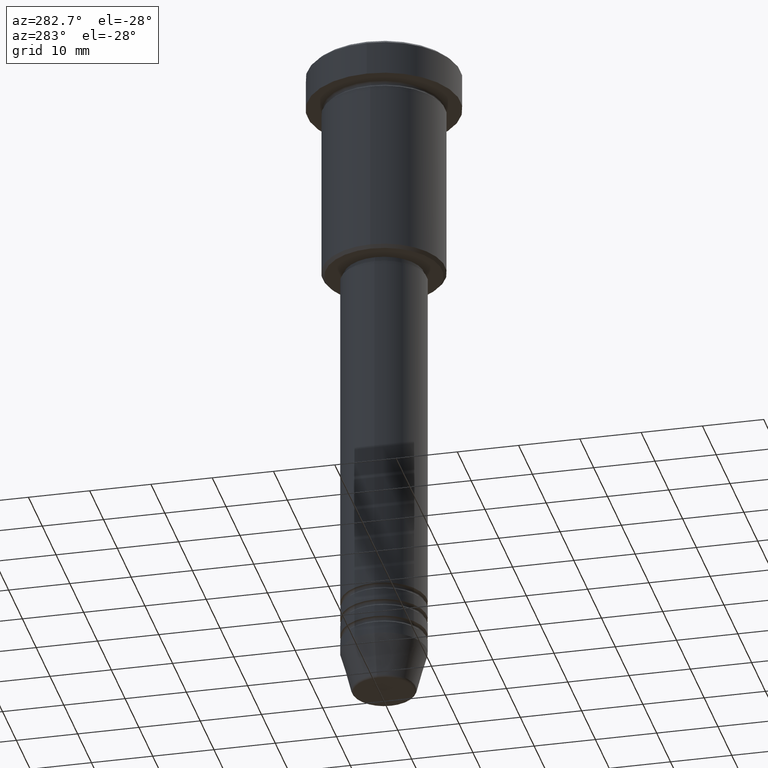
[diagram: clean part render]
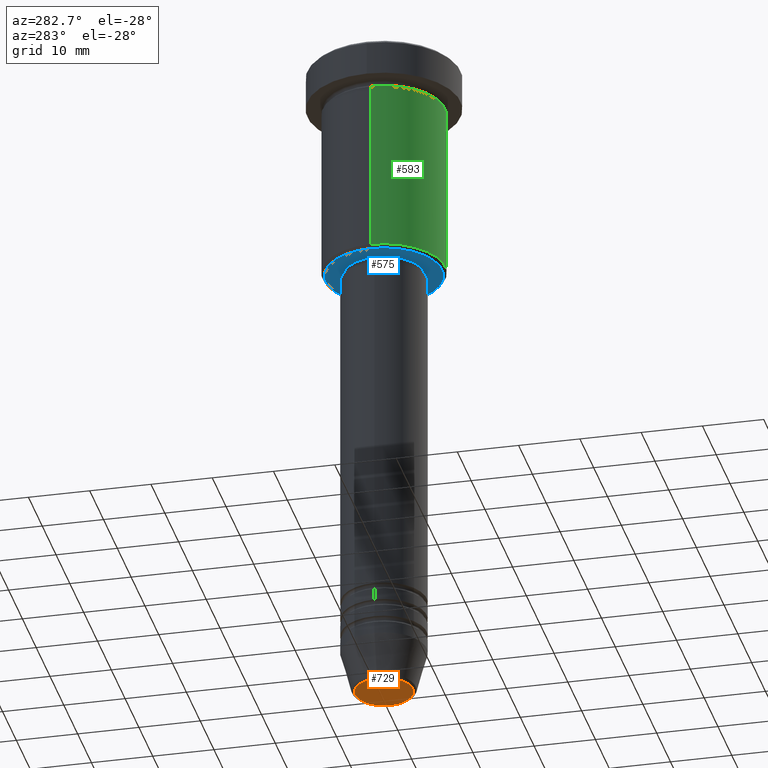
[diagram: same view with three faces highlighted in distinct colors, each labeled with its STEP entity id]
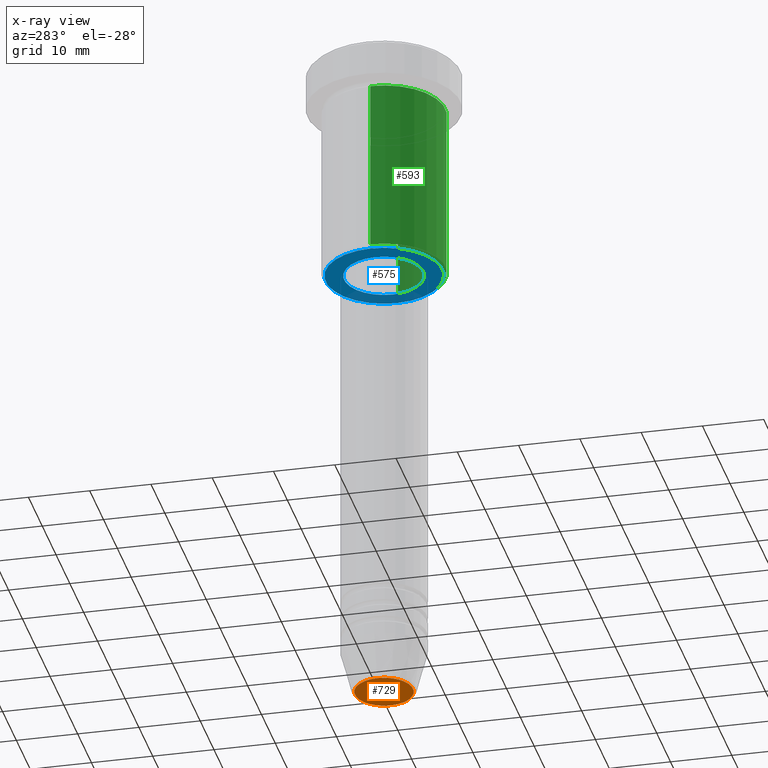
[diagram: x-ray of the same camera — body ghosted, the three highlighted faces saturated]
A machine part, auxiliary view with three faces highlighted in distinct colors.
The next image is the same camera in x-ray (body ghosted, the three faces saturated) — at least one of them is partly hidden behind the body in this view.
Their STEP definitions:

[orange] entity #729 — the highlighted planar face has unit normal (0, -0, 1).
#18 = CIRCLE ( 'NONE', #647, 4.740692158992659166 ) ;
#29 = DIRECTION ( 'NONE',  ( 1.000000000000000000, 0.000000000000000000, 0.000000000000000000 ) ) ;
#71 = ORIENTED_EDGE ( 'NONE', *, *, #395, .T. ) ;
#72 = DIRECTION ( 'NONE',  ( 1.000000000000000000, 0.000000000000000000, 0.000000000000000000 ) ) ;
#203 = EDGE_CURVE ( 'NONE', #429, #1035, #18, .T. ) ;
#214 = EDGE_LOOP ( 'NONE', ( #71, #1021 ) ) ;
#367 = DIRECTION ( 'NONE',  ( 0.000000000000000000, 0.000000000000000000, -1.000000000000000000 ) ) ;
#395 = EDGE_CURVE ( 'NONE', #1035, #429, #747, .T. ) ;
#429 = VERTEX_POINT ( 'NONE', #736 ) ;
#435 = AXIS2_PLACEMENT_3D ( 'NONE', #650, #367, #843 ) ;
#453 = AXIS2_PLACEMENT_3D ( 'NONE', #786, #790, #72 ) ;
#576 = DIRECTION ( 'NONE',  ( 0.000000000000000000, 0.000000000000000000, -1.000000000000000000 ) ) ;
#602 = FACE_OUTER_BOUND ( 'NONE', #214, .T. ) ;
#647 = AXIS2_PLACEMENT_3D ( 'NONE', #691, #576, #29 ) ;
#650 = CARTESIAN_POINT ( 'NONE',  ( 0.000000000000000000, 0.000000000000000000, -111.0000000000000000 ) ) ;
#691 = CARTESIAN_POINT ( 'NONE',  ( 0.000000000000000000, 0.000000000000000000, -111.0000000000000000 ) ) ;
#729 = ADVANCED_FACE ( 'NONE', ( #602 ), #877, .F. ) ;
#736 = CARTESIAN_POINT ( 'NONE',  ( -4.740692158992659166, 6.101402971097984690E-16, -111.0000000000000000 ) ) ;
#747 = CIRCLE ( 'NONE', #435, 4.740692158992659166 ) ;
#754 = CARTESIAN_POINT ( 'NONE',  ( 4.740692158992659166, 0.000000000000000000, -111.0000000000000000 ) ) ;
#786 = CARTESIAN_POINT ( 'NONE',  ( 0.000000000000000000, 0.000000000000000000, -111.0000000000000000 ) ) ;
#790 = DIRECTION ( 'NONE',  ( 0.000000000000000000, -0.000000000000000000, 1.000000000000000000 ) ) ;
#843 = DIRECTION ( 'NONE',  ( 1.000000000000000000, 0.000000000000000000, 0.000000000000000000 ) ) ;
#877 = PLANE ( 'NONE',  #453 ) ;
#1021 = ORIENTED_EDGE ( 'NONE', *, *, #203, .T. ) ;
#1035 = VERTEX_POINT ( 'NONE', #754 ) ;

[blue] entity #575 — the highlighted planar face has unit normal (0, 0, -1).
#12 = CIRCLE ( 'NONE', #76, 6.500000000000000000 ) ;
#23 = CARTESIAN_POINT ( 'NONE',  ( 0.000000000000000000, 0.000000000000000000, -36.00000000000000711 ) ) ;
#47 = DIRECTION ( 'NONE',  ( -1.000000000000000000, 0.000000000000000000, 0.000000000000000000 ) ) ;
#76 = AXIS2_PLACEMENT_3D ( 'NONE', #669, #934, #866 ) ;
#85 = ORIENTED_EDGE ( 'NONE', *, *, #986, .T. ) ;
#130 = AXIS2_PLACEMENT_3D ( 'NONE', #853, #1112, #670 ) ;
#131 = FACE_OUTER_BOUND ( 'NONE', #806, .T. ) ;
#142 = EDGE_LOOP ( 'NONE', ( #85, #718 ) ) ;
#239 = VERTEX_POINT ( 'NONE', #437 ) ;
#241 = CIRCLE ( 'NONE', #468, 9.500000000000008882 ) ;
#258 = CIRCLE ( 'NONE', #928, 6.500000000000000000 ) ;
#269 = CARTESIAN_POINT ( 'NONE',  ( 0.000000000000000000, 0.000000000000000000, -36.00000000000000711 ) ) ;
#295 = VERTEX_POINT ( 'NONE', #1158 ) ;
#390 = VERTEX_POINT ( 'NONE', #1181 ) ;
#399 = DIRECTION ( 'NONE',  ( -1.000000000000000000, 0.000000000000000000, 0.000000000000000000 ) ) ;
#411 = DIRECTION ( 'NONE',  ( 0.000000000000000000, 0.000000000000000000, -1.000000000000000000 ) ) ;
#437 = CARTESIAN_POINT ( 'NONE',  ( 9.500000000000008882, 0.000000000000000000, -36.00000000000000711 ) ) ;
#468 = AXIS2_PLACEMENT_3D ( 'NONE', #506, #867, #47 ) ;
#481 = FACE_BOUND ( 'NONE', #142, .T. ) ;
#506 = CARTESIAN_POINT ( 'NONE',  ( 0.000000000000000000, 0.000000000000000000, -36.00000000000000711 ) ) ;
#575 = ADVANCED_FACE ( 'NONE', ( #131, #481 ), #755, .T. ) ;
#667 = EDGE_CURVE ( 'NONE', #239, #295, #241, .T. ) ;
#669 = CARTESIAN_POINT ( 'NONE',  ( 0.000000000000000000, 0.000000000000000000, -36.00000000000000711 ) ) ;
#670 = DIRECTION ( 'NONE',  ( -1.000000000000000000, 0.000000000000000000, -0.000000000000000000 ) ) ;
#689 = VERTEX_POINT ( 'NONE', #1060 ) ;
#718 = ORIENTED_EDGE ( 'NONE', *, *, #864, .T. ) ;
#755 = PLANE ( 'NONE',  #130 ) ;
#806 = EDGE_LOOP ( 'NONE', ( #1041, #1028 ) ) ;
#830 = DIRECTION ( 'NONE',  ( -0.000000000000000000, -0.000000000000000000, 1.000000000000000000 ) ) ;
#853 = CARTESIAN_POINT ( 'NONE',  ( 0.000000000000000000, 10.00000000000000000, -36.00000000000000711 ) ) ;
#864 = EDGE_CURVE ( 'NONE', #390, #689, #258, .T. ) ;
#866 = DIRECTION ( 'NONE',  ( 1.000000000000000000, 0.000000000000000000, 0.000000000000000000 ) ) ;
#867 = DIRECTION ( 'NONE',  ( 0.000000000000000000, 0.000000000000000000, -1.000000000000000000 ) ) ;
#928 = AXIS2_PLACEMENT_3D ( 'NONE', #269, #830, #1179 ) ;
#934 = DIRECTION ( 'NONE',  ( -0.000000000000000000, -0.000000000000000000, 1.000000000000000000 ) ) ;
#986 = EDGE_CURVE ( 'NONE', #689, #390, #12, .T. ) ;
#1015 = EDGE_CURVE ( 'NONE', #295, #239, #1140, .T. ) ;
#1028 = ORIENTED_EDGE ( 'NONE', *, *, #1015, .T. ) ;
#1041 = ORIENTED_EDGE ( 'NONE', *, *, #667, .T. ) ;
#1060 = CARTESIAN_POINT ( 'NONE',  ( 6.500000000000000000, 0.000000000000000000, -36.00000000000000711 ) ) ;
#1063 = AXIS2_PLACEMENT_3D ( 'NONE', #23, #411, #399 ) ;
#1112 = DIRECTION ( 'NONE',  ( 0.000000000000000000, 0.000000000000000000, -1.000000000000000000 ) ) ;
#1140 = CIRCLE ( 'NONE', #1063, 9.500000000000008882 ) ;
#1158 = CARTESIAN_POINT ( 'NONE',  ( -9.500000000000008882, 1.194030629168669864E-15, -36.00000000000000711 ) ) ;
#1179 = DIRECTION ( 'NONE',  ( 1.000000000000000000, 0.000000000000000000, 0.000000000000000000 ) ) ;
#1181 = CARTESIAN_POINT ( 'NONE',  ( -6.500000000000000000, 7.960204194457795477E-16, -36.00000000000000711 ) ) ;

[green] entity #593 — the highlighted cylindrical surface (partial cylindrical patch) has radius 10 mm, axis along (-0, -0, 1).
#43 = LINE ( 'NONE', #420, #512 ) ;
#66 = VERTEX_POINT ( 'NONE', #652 ) ;
#149 = EDGE_CURVE ( 'NONE', #958, #933, #43, .T. ) ;
#180 = EDGE_CURVE ( 'NONE', #933, #66, #187, .T. ) ;
#187 = CIRCLE ( 'NONE', #1178, 10.00000000000000000 ) ;
#230 = DIRECTION ( 'NONE',  ( -0.000000000000000000, -0.000000000000000000, 1.000000000000000000 ) ) ;
#231 = DIRECTION ( 'NONE',  ( -0.000000000000000000, -0.000000000000000000, 1.000000000000000000 ) ) ;
#252 = LINE ( 'NONE', #616, #1000 ) ;
#263 = CARTESIAN_POINT ( 'NONE',  ( -10.00000000000000000, 1.224646799147353256E-15, -6.999999999999996447 ) ) ;
#268 = EDGE_CURVE ( 'NONE', #1110, #66, #252, .T. ) ;
#303 = DIRECTION ( 'NONE',  ( -0.000000000000000000, -0.000000000000000000, 1.000000000000000000 ) ) ;
#320 = FACE_OUTER_BOUND ( 'NONE', #645, .T. ) ;
#392 = CARTESIAN_POINT ( 'NONE',  ( 0.000000000000000000, 0.000000000000000000, 0.000000000000000000 ) ) ;
#420 = CARTESIAN_POINT ( 'NONE',  ( -10.00000000000000000, 1.224646799147353256E-15, 0.000000000000000000 ) ) ;
#471 = CIRCLE ( 'NONE', #930, 10.00000000000000000 ) ;
#482 = CARTESIAN_POINT ( 'NONE',  ( 0.000000000000000000, 0.000000000000000000, -6.999999999999996447 ) ) ;
#512 = VECTOR ( 'NONE', #1141, 1000.000000000000000 ) ;
#593 = ADVANCED_FACE ( 'NONE', ( #320 ), #1120, .T. ) ;
#616 = CARTESIAN_POINT ( 'NONE',  ( 10.00000000000000000, 0.000000000000000000, 0.000000000000000000 ) ) ;
#628 = DIRECTION ( 'NONE',  ( -0.000000000000000000, -0.000000000000000000, 1.000000000000000000 ) ) ;
#645 = EDGE_LOOP ( 'NONE', ( #1116, #775, #904, #710 ) ) ;
#652 = CARTESIAN_POINT ( 'NONE',  ( 10.00000000000000000, 0.000000000000000000, -6.999999999999996447 ) ) ;
#673 = DIRECTION ( 'NONE',  ( -1.000000000000000000, 0.000000000000000000, 0.000000000000000000 ) ) ;
#710 = ORIENTED_EDGE ( 'NONE', *, *, #180, .F. ) ;
#775 = ORIENTED_EDGE ( 'NONE', *, *, #1092, .T. ) ;
#842 = CARTESIAN_POINT ( 'NONE',  ( -10.00000000000000000, 1.224646799147353256E-15, -35.50000000000001421 ) ) ;
#904 = ORIENTED_EDGE ( 'NONE', *, *, #268, .T. ) ;
#930 = AXIS2_PLACEMENT_3D ( 'NONE', #1040, #303, #673 ) ;
#933 = VERTEX_POINT ( 'NONE', #263 ) ;
#958 = VERTEX_POINT ( 'NONE', #842 ) ;
#962 = CARTESIAN_POINT ( 'NONE',  ( 10.00000000000000000, 0.000000000000000000, -35.50000000000001421 ) ) ;
#1000 = VECTOR ( 'NONE', #628, 1000.000000000000000 ) ;
#1031 = DIRECTION ( 'NONE',  ( 1.000000000000000000, 0.000000000000000000, 0.000000000000000000 ) ) ;
#1040 = CARTESIAN_POINT ( 'NONE',  ( 0.000000000000000000, 0.000000000000000000, -35.50000000000001421 ) ) ;
#1062 = AXIS2_PLACEMENT_3D ( 'NONE', #392, #230, #1031 ) ;
#1092 = EDGE_CURVE ( 'NONE', #958, #1110, #471, .T. ) ;
#1110 = VERTEX_POINT ( 'NONE', #962 ) ;
#1116 = ORIENTED_EDGE ( 'NONE', *, *, #149, .F. ) ;
#1120 = CYLINDRICAL_SURFACE ( 'NONE', #1062, 10.00000000000000000 ) ;
#1134 = DIRECTION ( 'NONE',  ( 1.000000000000000000, 0.000000000000000000, 0.000000000000000000 ) ) ;
#1141 = DIRECTION ( 'NONE',  ( -0.000000000000000000, -0.000000000000000000, 1.000000000000000000 ) ) ;
#1178 = AXIS2_PLACEMENT_3D ( 'NONE', #482, #231, #1134 ) ;